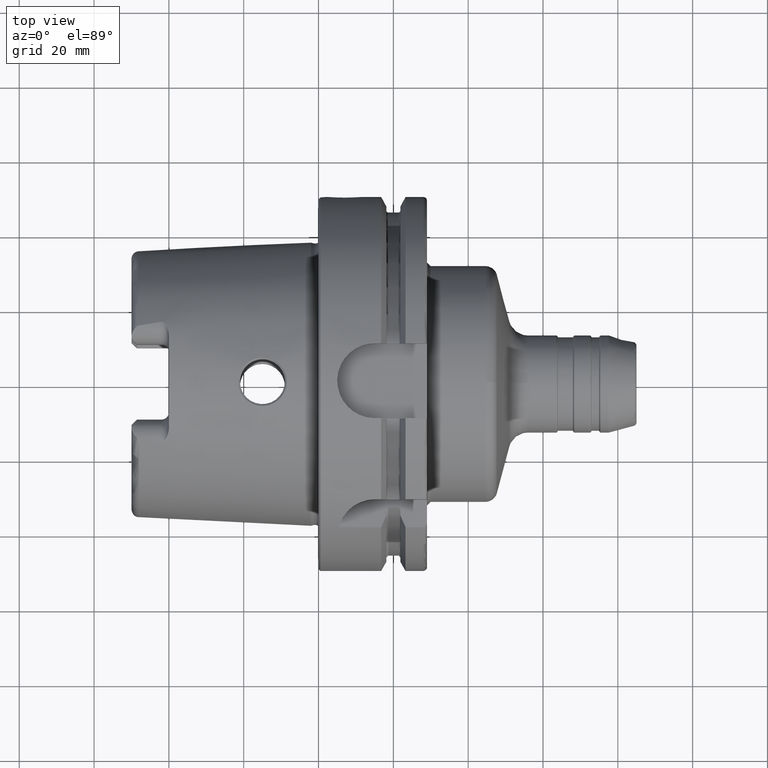
[diagram: clean part render]
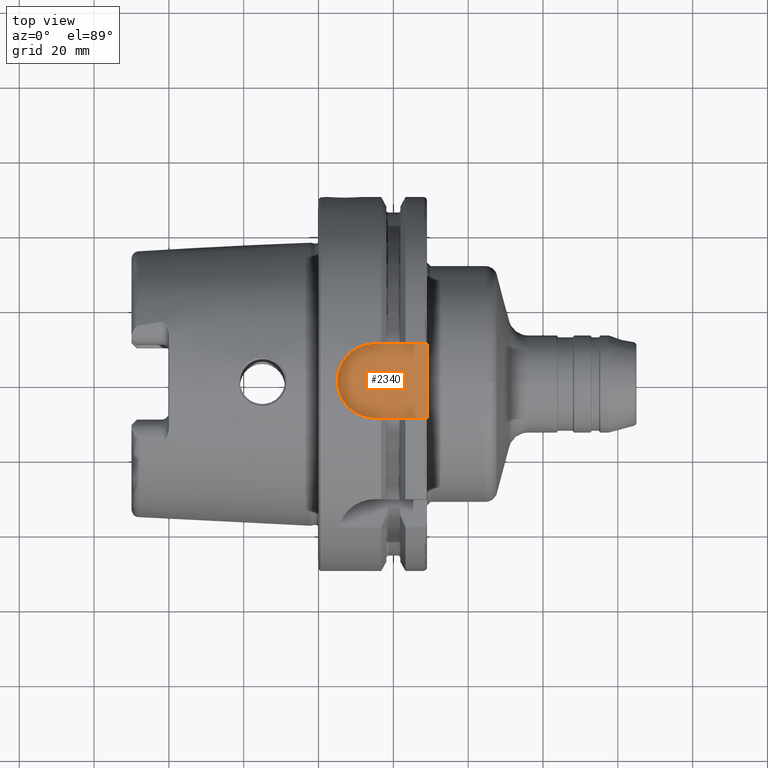
[diagram: same view with one face highlighted and labeled with its STEP entity id]
A machine part, top view. The second image highlights one B-rep face of the part: STEP entity #2340.
In plain terms, the highlighted planar face has unit normal (0, 0, 1).
Its self-contained STEP definition (entity closure, byte-faithful):
#129=PLANE('',#2633);
#284=FACE_OUTER_BOUND('',#425,.T.);
#425=EDGE_LOOP('',(#2000,#2001,#2002,#2003));
#493=LINE('',#3643,#604);
#564=LINE('',#4891,#675);
#567=LINE('',#4898,#678);
#604=VECTOR('',#2922,10.);
#675=VECTOR('',#3259,10.);
#678=VECTOR('',#3268,10.);
#827=CIRCLE('',#2631,10.);
#933=VERTEX_POINT('',#3640);
#934=VERTEX_POINT('',#3642);
#1082=VERTEX_POINT('',#4890);
#1083=VERTEX_POINT('',#4894);
#1195=EDGE_CURVE('',#933,#934,#493,.T.);
#1404=EDGE_CURVE('',#1082,#934,#564,.T.);
#1406=EDGE_CURVE('',#1083,#1082,#827,.T.);
#1408=EDGE_CURVE('',#933,#1083,#567,.T.);
#2000=ORIENTED_EDGE('',*,*,#1408,.T.);
#2001=ORIENTED_EDGE('',*,*,#1406,.T.);
#2002=ORIENTED_EDGE('',*,*,#1404,.T.);
#2003=ORIENTED_EDGE('',*,*,#1195,.F.);
#2340=ADVANCED_FACE('',(#284),#129,.T.);
#2631=AXIS2_PLACEMENT_3D('',#4895,#3263,#3264);
#2633=AXIS2_PLACEMENT_3D('',#4899,#3269,#3270);
#2922=DIRECTION('',(0.,-1.,0.));
#3259=DIRECTION('',(1.,7.93016446160826E-17,0.));
#3263=DIRECTION('center_axis',(0.,0.,1.));
#3264=DIRECTION('ref_axis',(0.,1.,0.));
#3268=DIRECTION('',(-1.,0.,0.));
#3269=DIRECTION('center_axis',(0.,0.,1.));
#3270=DIRECTION('ref_axis',(1.,0.,0.));
#3640=CARTESIAN_POINT('',(29.,10.,44.));
#3642=CARTESIAN_POINT('',(29.,-10.,44.));
#3643=CARTESIAN_POINT('',(29.,0.,44.));
#4890=CARTESIAN_POINT('',(15.,-10.,44.));
#4891=CARTESIAN_POINT('',(15.,-10.,44.));
#4894=CARTESIAN_POINT('',(15.,10.,44.));
#4895=CARTESIAN_POINT('Origin',(15.,0.,44.));
#4898=CARTESIAN_POINT('',(29.,10.,44.));
#4899=CARTESIAN_POINT('Origin',(17.,0.,44.));